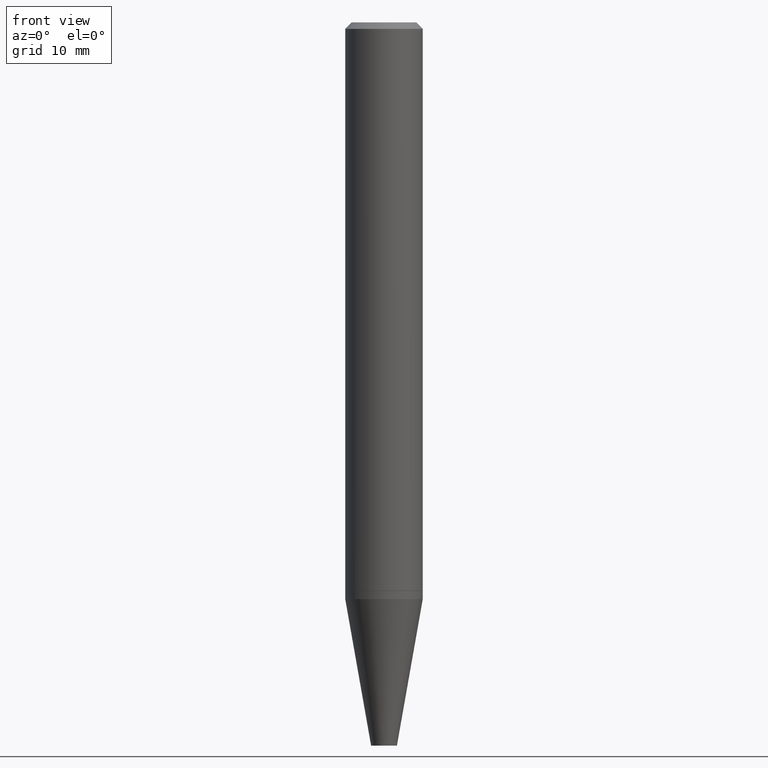
[diagram: clean part render]
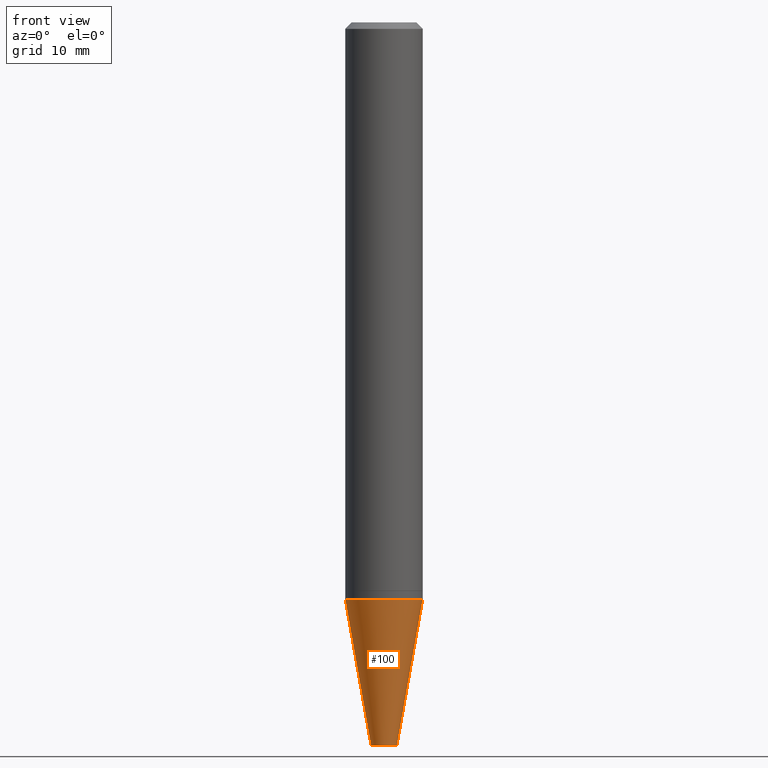
[diagram: same view with one face highlighted and labeled with its STEP entity id]
A machine part, front view. The second image highlights one B-rep face of the part: STEP entity #100.
In plain terms, the highlighted conical surface has half-angle 10 deg.
Its self-contained STEP definition (entity closure, byte-faithful):
#10 = DIRECTION ( 'NONE',  ( 1.000000000000000000, -6.982962677686256455E-15, 0.000000000000000000 ) ) ;
#13 = DIRECTION ( 'NONE',  ( -2.445468806185136597E-29, 3.491481338843145583E-15, 1.000000000000000000 ) ) ;
#15 = CARTESIAN_POINT ( 'NONE',  ( 8.559140821647976968E-29, -1.222018468595100934E-14, -3.500000000000000000 ) ) ;
#17 = CIRCLE ( 'NONE', #262, 0.06250000000000005551 ) ;
#51 = LINE ( 'NONE', #123, #328 ) ;
#56 = ORIENTED_EDGE ( 'NONE', *, *, #99, .F. ) ;
#63 = ORIENTED_EDGE ( 'NONE', *, *, #275, .T. ) ;
#67 = AXIS2_PLACEMENT_3D ( 'NONE', #324, #327, #331 ) ;
#99 = EDGE_CURVE ( 'NONE', #332, #236, #155, .T. ) ;
#100 = ADVANCED_FACE ( 'NONE', ( #175 ), #189, .T. ) ;
#112 = CARTESIAN_POINT ( 'NONE',  ( 0.06250000000000005551, -1.265661985330639943E-14, -3.500000000000000000 ) ) ;
#123 = CARTESIAN_POINT ( 'NONE',  ( -0.06250000000000005551, -1.177609547610094673E-14, -3.500000000000000000 ) ) ;
#138 = VERTEX_POINT ( 'NONE', #354 ) ;
#155 = CIRCLE ( 'NONE', #67, 0.1875000000000000278 ) ;
#160 = VECTOR ( 'NONE', #238, 39.37007874015748143 ) ;
#163 = EDGE_LOOP ( 'NONE', ( #293, #63, #390, #56 ) ) ;
#169 = LINE ( 'NONE', #112, #160 ) ;
#171 = EDGE_CURVE ( 'NONE', #138, #236, #169, .T. ) ;
#175 = FACE_OUTER_BOUND ( 'NONE', #163, .T. ) ;
#189 = CONICAL_SURFACE ( 'NONE', #322, 0.06250000000000005551, 0.1745329251994259256 ) ;
#190 = CARTESIAN_POINT ( 'NONE',  ( -0.06250000000000005551, -1.009443285121860521E-14, -3.500000000000000000 ) ) ;
#214 = EDGE_CURVE ( 'NONE', #321, #332, #51, .T. ) ;
#236 = VERTEX_POINT ( 'NONE', #404 ) ;
#238 = DIRECTION ( 'NONE',  ( 0.1736481776669234200, 2.225859148293818106E-15, 0.9848077530122092416 ) ) ;
#245 = DIRECTION ( 'NONE',  ( -2.445468806185136597E-29, 3.491481338843145583E-15, 1.000000000000000000 ) ) ;
#252 = CARTESIAN_POINT ( 'NONE',  ( -0.1875000000000000278, -8.412770226336266860E-15, -2.791089772547757253 ) ) ;
#262 = AXIS2_PLACEMENT_3D ( 'NONE', #272, #245, #334 ) ;
#272 = CARTESIAN_POINT ( 'NONE',  ( 8.559140821647976968E-29, -1.222018468595100934E-14, -3.500000000000000000 ) ) ;
#275 = EDGE_CURVE ( 'NONE', #321, #138, #17, .T. ) ;
#293 = ORIENTED_EDGE ( 'NONE', *, *, #214, .F. ) ;
#321 = VERTEX_POINT ( 'NONE', #190 ) ;
#322 = AXIS2_PLACEMENT_3D ( 'NONE', #15, #13, #10 ) ;
#324 = CARTESIAN_POINT ( 'NONE',  ( 6.825522974027907843E-29, -9.745037855886453130E-15, -2.791089772547757253 ) ) ;
#327 = DIRECTION ( 'NONE',  ( -2.445468806185136597E-29, 3.491481338843145583E-15, 1.000000000000000000 ) ) ;
#328 = VECTOR ( 'NONE', #365, 39.37007874015748143 ) ;
#331 = DIRECTION ( 'NONE',  ( 1.000000000000000000, -6.982962677686261189E-15, 0.000000000000000000 ) ) ;
#332 = VERTEX_POINT ( 'NONE', #252 ) ;
#334 = DIRECTION ( 'NONE',  ( 1.000000000000000000, -6.982962677686256455E-15, 0.000000000000000000 ) ) ;
#354 = CARTESIAN_POINT ( 'NONE',  ( 0.06250000000000005551, -1.265661985330639943E-14, -3.500000000000000000 ) ) ;
#365 = DIRECTION ( 'NONE',  ( -0.1736481776669234200, 4.672282404182295014E-15, 0.9848077530122092416 ) ) ;
#390 = ORIENTED_EDGE ( 'NONE', *, *, #171, .T. ) ;
#404 = CARTESIAN_POINT ( 'NONE',  ( 0.1875000000000000278, -1.105434335795262656E-14, -2.791089772547757253 ) ) ;